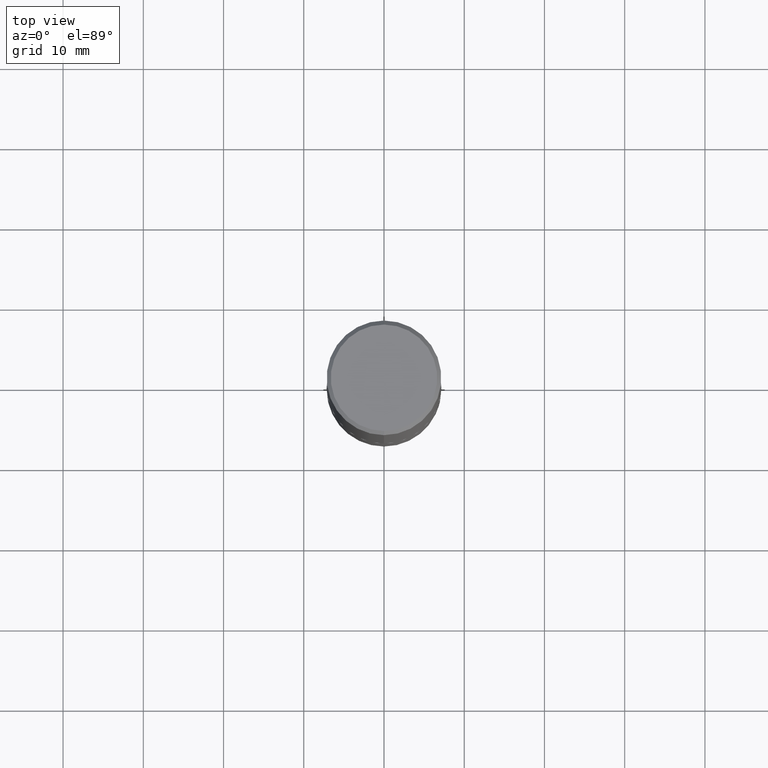
[diagram: clean part render]
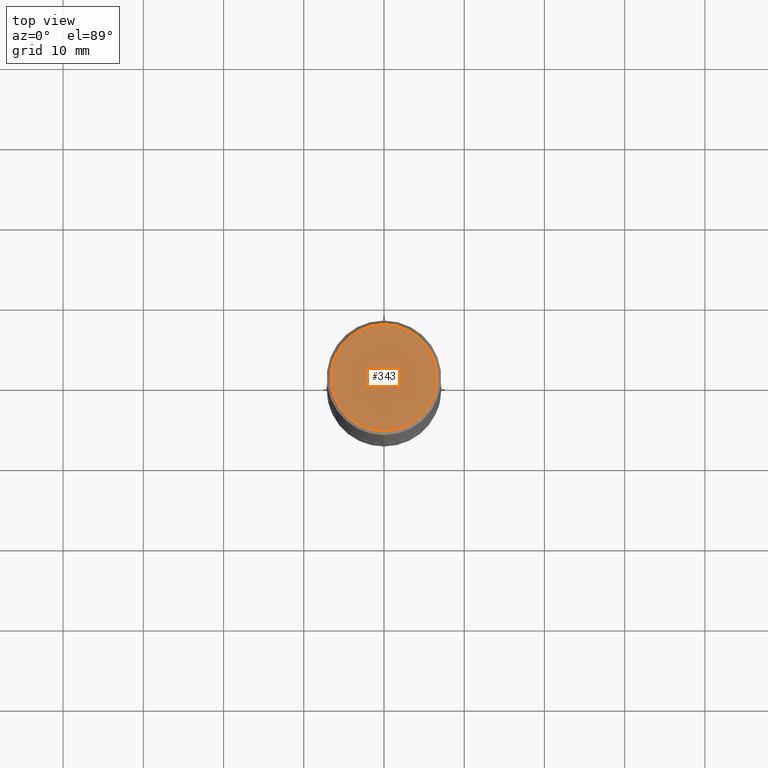
[diagram: same view with one face highlighted and labeled with its STEP entity id]
A machine part, top view. The second image highlights one B-rep face of the part: STEP entity #343.
In plain terms, the highlighted planar face has unit normal (0, -0, -1).
Its self-contained STEP definition (entity closure, byte-faithful):
#8 = CIRCLE ( 'NONE', #305, 0.2612499999999998712 ) ;
#23 = AXIS2_PLACEMENT_3D ( 'NONE', #364, #277, #269 ) ;
#46 = ORIENTED_EDGE ( 'NONE', *, *, #78, .T. ) ;
#48 = PLANE ( 'NONE',  #183 ) ;
#78 = EDGE_CURVE ( 'NONE', #361, #328, #8, .T. ) ;
#86 = CARTESIAN_POINT ( 'NONE',  ( -1.860910081895526737E-15, -0.2612499999999998712, 9.889841266948666649E-16 ) ) ;
#159 = DIRECTION ( 'NONE',  ( -6.982962677686265133E-15, -1.000000000000000000, 3.491484022288672597E-15 ) ) ;
#183 = AXIS2_PLACEMENT_3D ( 'NONE', #372, #296, #185 ) ;
#185 = DIRECTION ( 'NONE',  ( 6.982962677686265922E-15, 1.000000000000000000, -3.491484022288672992E-15 ) ) ;
#242 = FACE_OUTER_BOUND ( 'NONE', #358, .T. ) ;
#264 = CIRCLE ( 'NONE', #23, 0.2612499999999998712 ) ;
#269 = DIRECTION ( 'NONE',  ( -6.982962677686265133E-15, -1.000000000000000000, 3.491484022288672597E-15 ) ) ;
#276 = EDGE_CURVE ( 'NONE', #328, #361, #264, .T. ) ;
#277 = DIRECTION ( 'NONE',  ( -2.445466932345140310E-29, 3.491484022288672597E-15, 1.000000000000000000 ) ) ;
#282 = DIRECTION ( 'NONE',  ( -2.445466932345140310E-29, 3.491484022288672597E-15, 1.000000000000000000 ) ) ;
#296 = DIRECTION ( 'NONE',  ( 2.445466932345139750E-29, -3.491484022288672992E-15, -1.000000000000000000 ) ) ;
#305 = AXIS2_PLACEMENT_3D ( 'NONE', #345, #282, #159 ) ;
#328 = VERTEX_POINT ( 'NONE', #395 ) ;
#338 = ORIENTED_EDGE ( 'NONE', *, *, #276, .T. ) ;
#343 = ADVANCED_FACE ( 'NONE', ( #242 ), #48, .F. ) ;
#345 = CARTESIAN_POINT ( 'NONE',  ( -1.878948250021147159E-45, 2.682644245516303250E-31, 7.683392587195133242E-17 ) ) ;
#358 = EDGE_LOOP ( 'NONE', ( #338, #46 ) ) ;
#361 = VERTEX_POINT ( 'NONE', #86 ) ;
#364 = CARTESIAN_POINT ( 'NONE',  ( -1.878948250021147159E-45, 2.682644245516303250E-31, 7.683392587195133242E-17 ) ) ;
#372 = CARTESIAN_POINT ( 'NONE',  ( 1.824298999545535916E-15, 0.2612499999999998712, -8.737332378869396355E-16 ) ) ;
#395 = CARTESIAN_POINT ( 'NONE',  ( 1.894128626322399214E-15, 0.2612499999999998712, -8.353162749509640247E-16 ) ) ;